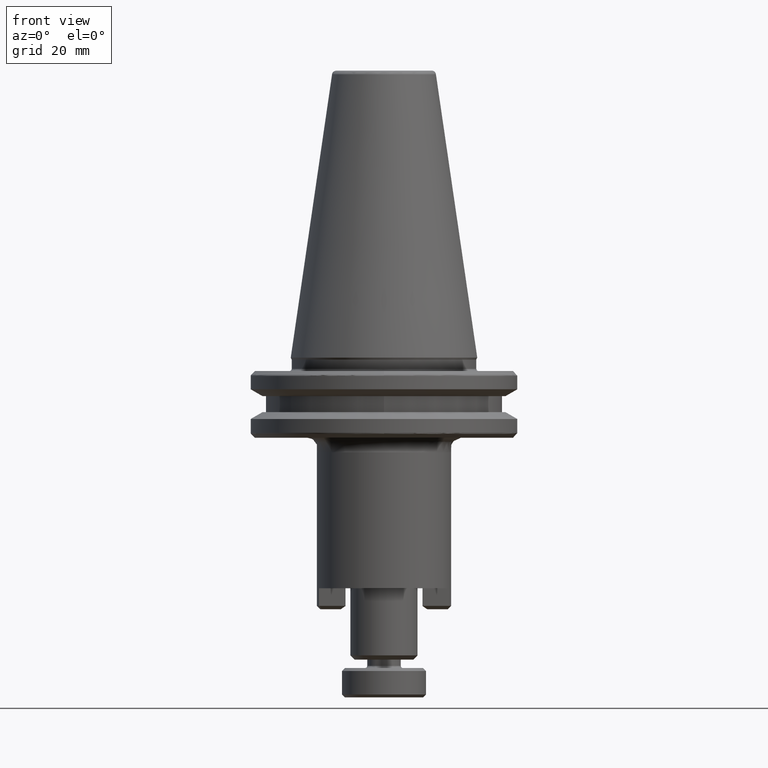
[diagram: clean part render]
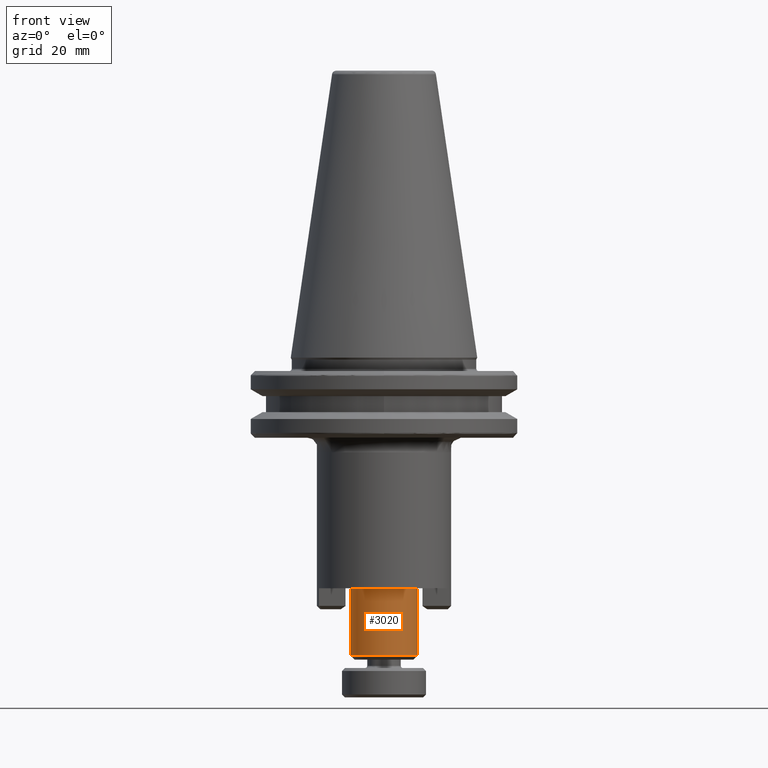
[diagram: same view with one face highlighted and labeled with its STEP entity id]
A machine part, front view. The second image highlights one B-rep face of the part: STEP entity #3020.
In plain terms, the highlighted cylindrical surface (edge-blend (fillet) strip) has radius 8 mm, axis along (-0, -0, -1).
Its self-contained STEP definition (entity closure, byte-faithful):
#52 = VERTEX_POINT ( 'NONE', #1179 ) ;
#109 = DIRECTION ( 'NONE',  ( -1.000000000000000000, 0.0000000000000000000, 0.0000000000000000000 ) ) ;
#119 = DIRECTION ( 'NONE',  ( -0.0000000000000000000, -0.0000000000000000000, -1.000000000000000000 ) ) ;
#125 = CARTESIAN_POINT ( 'NONE',  ( 75.04590007657358800, 85.49383738044632300, 13.42314626776779100 ) ) ;
#139 = ORIENTED_EDGE ( 'NONE', *, *, #2152, .T. ) ;
#232 = AXIS2_PLACEMENT_3D ( 'NONE', #1741, #2362, #1791 ) ;
#259 = DIRECTION ( 'NONE',  ( -1.000000000000000000, 0.0000000000000000000, 0.0000000000000000000 ) ) ;
#267 = DIRECTION ( 'NONE',  ( -0.0000000000000000000, -0.0000000000000000000, -1.000000000000000000 ) ) ;
#279 = CARTESIAN_POINT ( 'NONE',  ( 75.04590007657358800, 85.49383738044632300, 29.42314627176779900 ) ) ;
#332 = ORIENTED_EDGE ( 'NONE', *, *, #1700, .T. ) ;
#387 = EDGE_CURVE ( 'NONE', #2225, #785, #1361, .T. ) ;
#485 = FACE_OUTER_BOUND ( 'NONE', #584, .T. ) ;
#584 = EDGE_LOOP ( 'NONE', ( #3011, #332, #139, #1476 ) ) ;
#672 = CARTESIAN_POINT ( 'NONE',  ( 67.04590007657360200, 85.49383738044632300, 13.42314626776779100 ) ) ;
#785 = VERTEX_POINT ( 'NONE', #1244 ) ;
#941 = CIRCLE ( 'NONE', #2398, 7.999999999999992900 ) ;
#1044 = CIRCLE ( 'NONE', #2078, 7.999999999999992900 ) ;
#1046 = CARTESIAN_POINT ( 'NONE',  ( 67.04590007657360200, 85.49383738044632300, -2.618557877411831200 ) ) ;
#1179 = CARTESIAN_POINT ( 'NONE',  ( 67.04590007657360200, 85.49383738044632300, 29.42314627176779900 ) ) ;
#1244 = CARTESIAN_POINT ( 'NONE',  ( 83.04590007657358800, 85.49383738044632300, 13.42314626776779100 ) ) ;
#1360 = VECTOR ( 'NONE', #2916, 1000.000000000000000 ) ;
#1361 = LINE ( 'NONE', #2923, #1360 ) ;
#1476 = ORIENTED_EDGE ( 'NONE', *, *, #1745, .F. ) ;
#1700 = EDGE_CURVE ( 'NONE', #2225, #52, #941, .T. ) ;
#1741 = CARTESIAN_POINT ( 'NONE',  ( 75.04590007657358800, 85.49383738044632300, -2.618557877411831200 ) ) ;
#1745 = EDGE_CURVE ( 'NONE', #785, #2245, #1044, .T. ) ;
#1791 = DIRECTION ( 'NONE',  ( -1.000000000000000000, 0.0000000000000000000, 0.0000000000000000000 ) ) ;
#1836 = VECTOR ( 'NONE', #2861, 1000.000000000000000 ) ;
#2078 = AXIS2_PLACEMENT_3D ( 'NONE', #125, #119, #109 ) ;
#2152 = EDGE_CURVE ( 'NONE', #52, #2245, #2437, .T. ) ;
#2225 = VERTEX_POINT ( 'NONE', #3082 ) ;
#2245 = VERTEX_POINT ( 'NONE', #672 ) ;
#2362 = DIRECTION ( 'NONE',  ( -0.0000000000000000000, -0.0000000000000000000, -1.000000000000000000 ) ) ;
#2398 = AXIS2_PLACEMENT_3D ( 'NONE', #279, #267, #259 ) ;
#2437 = LINE ( 'NONE', #1046, #1836 ) ;
#2861 = DIRECTION ( 'NONE',  ( -0.0000000000000000000, -0.0000000000000000000, -1.000000000000000000 ) ) ;
#2916 = DIRECTION ( 'NONE',  ( -0.0000000000000000000, -0.0000000000000000000, -1.000000000000000000 ) ) ;
#2923 = CARTESIAN_POINT ( 'NONE',  ( 83.04590007657358800, 85.49383738044632300, -2.618557877411831200 ) ) ;
#2954 = CYLINDRICAL_SURFACE ( 'NONE', #232, 7.999999999999992900 ) ;
#3011 = ORIENTED_EDGE ( 'NONE', *, *, #387, .F. ) ;
#3020 = ADVANCED_FACE ( 'NONE', ( #485 ), #2954, .T. ) ;
#3082 = CARTESIAN_POINT ( 'NONE',  ( 83.04590007657358800, 85.49383738044632300, 29.42314627176779900 ) ) ;